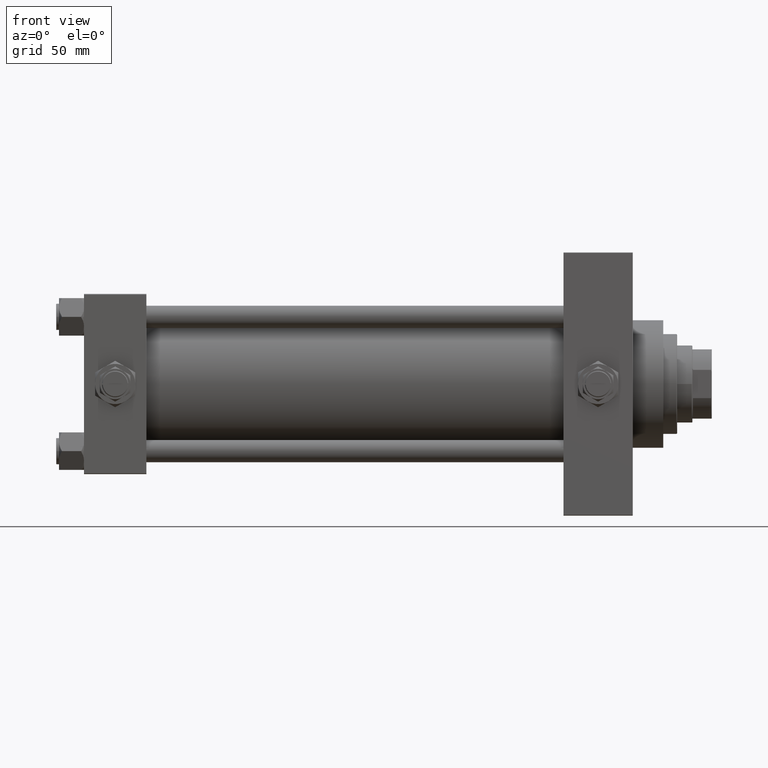
[diagram: clean part render]
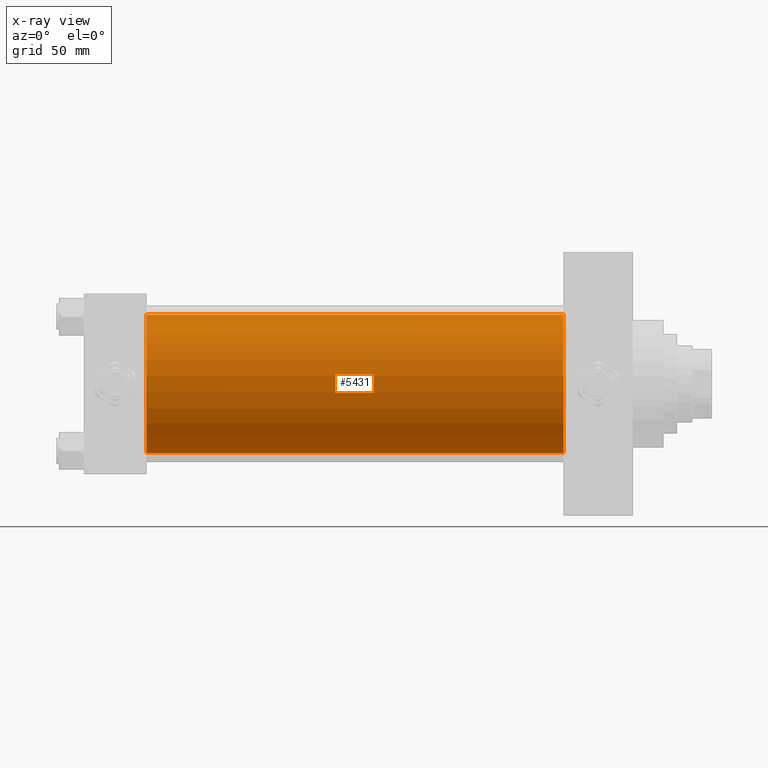
[diagram: x-ray — body ghosted, one internal face saturated and labeled with its STEP entity id]
A machine part, front view, then the same camera in x-ray: the body is ghosted and one INTERNAL B-rep face — a face not visible from any outside direction — is saturated and labeled: STEP entity #5431.
In plain terms, the highlighted cylindrical surface (partial cylindrical patch) has radius 50 mm, axis along (-1, -0, -0).
Its self-contained STEP definition (entity closure, byte-faithful):
#887 = FACE_OUTER_BOUND ( 'NONE', #32800, .T. ) ;
#1698 = AXIS2_PLACEMENT_3D ( 'NONE', #30150, #26128, #10992 ) ;
#5431 = ADVANCED_FACE ( 'NONE', ( #887 ), #16280, .F. ) ;
#6567 = EDGE_CURVE ( 'NONE', #45724, #8315, #42403, .T. ) ;
#8315 = VERTEX_POINT ( 'NONE', #19604 ) ;
#9194 = DIRECTION ( 'NONE',  ( 0.000000000000000000, 0.000000000000000000, 1.000000000000000000 ) ) ;
#10992 = DIRECTION ( 'NONE',  ( 0.000000000000000000, 0.000000000000000000, -1.000000000000000000 ) ) ;
#12941 = ORIENTED_EDGE ( 'NONE', *, *, #34019, .T. ) ;
#12985 = CARTESIAN_POINT ( 'NONE',  ( 346.0000000000000000, -2.602085213965210642E-15, 0.000000000000000000 ) ) ;
#14222 = VECTOR ( 'NONE', #38623, 1000.000000000000000 ) ;
#16280 = CYLINDRICAL_SURFACE ( 'NONE', #16598, 50.00000000000000000 ) ;
#16598 = AXIS2_PLACEMENT_3D ( 'NONE', #12985, #31642, #9194 ) ;
#17350 = DIRECTION ( 'NONE',  ( -1.000000000000000000, -0.000000000000000000, -0.000000000000000000 ) ) ;
#18522 = EDGE_CURVE ( 'NONE', #49664, #8315, #23340, .T. ) ;
#18535 = CARTESIAN_POINT ( 'NONE',  ( 346.0000000000000000, 3.521148781771555838E-15, -50.00000000000000000 ) ) ;
#19604 = CARTESIAN_POINT ( 'NONE',  ( 45.00000000000000000, 3.521148781771555838E-15, -50.00000000000000000 ) ) ;
#22647 = DIRECTION ( 'NONE',  ( 0.000000000000000000, 0.000000000000000000, -1.000000000000000000 ) ) ;
#23340 = CIRCLE ( 'NONE', #27364, 50.00000000000000000 ) ;
#23440 = CIRCLE ( 'NONE', #1698, 50.00000000000000000 ) ;
#24417 = CARTESIAN_POINT ( 'NONE',  ( 346.0000000000000000, -2.602085213965210642E-15, 50.00000000000000000 ) ) ;
#24662 = VECTOR ( 'NONE', #17350, 1000.000000000000000 ) ;
#26128 = DIRECTION ( 'NONE',  ( 1.000000000000000000, 0.000000000000000000, 0.000000000000000000 ) ) ;
#26432 = DIRECTION ( 'NONE',  ( 1.000000000000000000, 0.000000000000000000, 0.000000000000000000 ) ) ;
#27364 = AXIS2_PLACEMENT_3D ( 'NONE', #33996, #26432, #22647 ) ;
#29709 = VERTEX_POINT ( 'NONE', #46985 ) ;
#30150 = CARTESIAN_POINT ( 'NONE',  ( 346.0000000000000000, -2.602085213965210642E-15, 0.000000000000000000 ) ) ;
#30543 = CARTESIAN_POINT ( 'NONE',  ( 346.0000000000000000, 3.521148781771555838E-15, -50.00000000000000000 ) ) ;
#31642 = DIRECTION ( 'NONE',  ( -1.000000000000000000, -0.000000000000000000, -0.000000000000000000 ) ) ;
#32800 = EDGE_LOOP ( 'NONE', ( #12941, #41907, #47171, #35544 ) ) ;
#33996 = CARTESIAN_POINT ( 'NONE',  ( 45.00000000000000000, -2.602085213965210642E-15, 0.000000000000000000 ) ) ;
#34019 = EDGE_CURVE ( 'NONE', #29709, #45724, #23440, .T. ) ;
#35544 = ORIENTED_EDGE ( 'NONE', *, *, #44648, .F. ) ;
#38121 = CARTESIAN_POINT ( 'NONE',  ( 45.00000000000000000, -2.602085213965210642E-15, 50.00000000000000000 ) ) ;
#38623 = DIRECTION ( 'NONE',  ( -1.000000000000000000, -0.000000000000000000, -0.000000000000000000 ) ) ;
#41907 = ORIENTED_EDGE ( 'NONE', *, *, #6567, .T. ) ;
#42403 = LINE ( 'NONE', #30543, #14222 ) ;
#44648 = EDGE_CURVE ( 'NONE', #29709, #49664, #48115, .T. ) ;
#45724 = VERTEX_POINT ( 'NONE', #18535 ) ;
#46985 = CARTESIAN_POINT ( 'NONE',  ( 346.0000000000000000, -2.602085213965210642E-15, 50.00000000000000000 ) ) ;
#47171 = ORIENTED_EDGE ( 'NONE', *, *, #18522, .F. ) ;
#48115 = LINE ( 'NONE', #24417, #24662 ) ;
#49664 = VERTEX_POINT ( 'NONE', #38121 ) ;